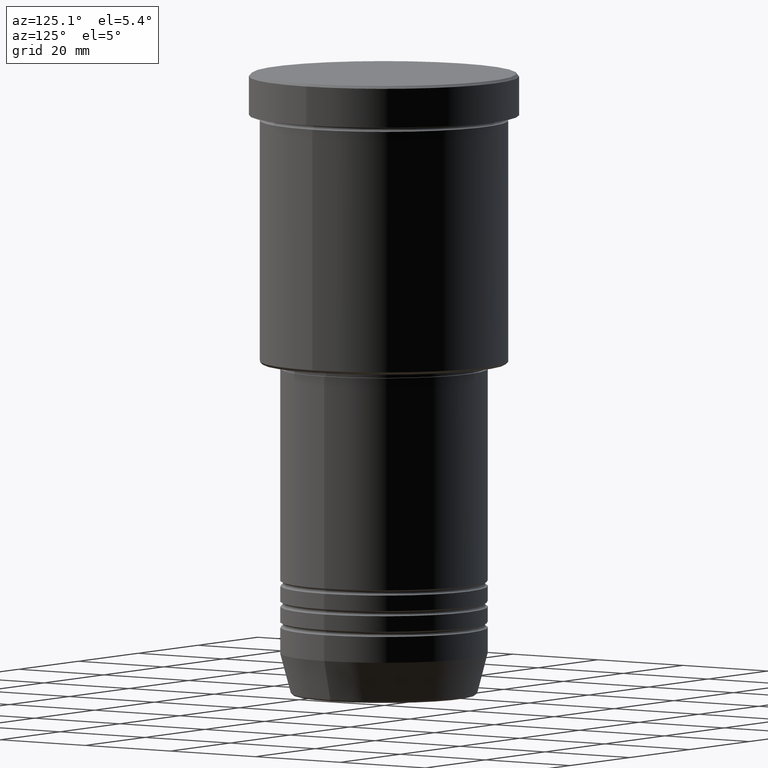
[diagram: clean part render]
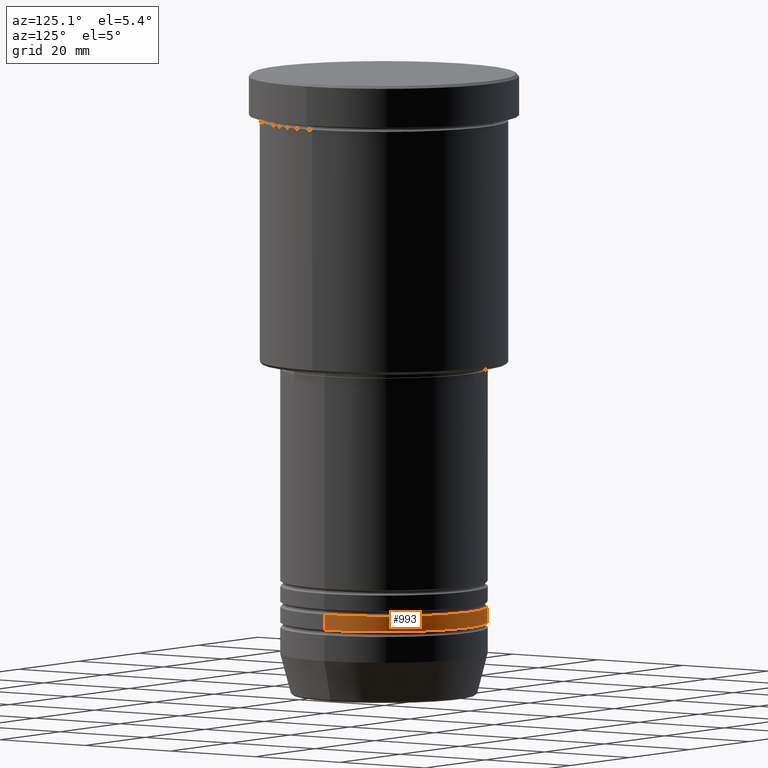
[diagram: same view with one face highlighted and labeled with its STEP entity id]
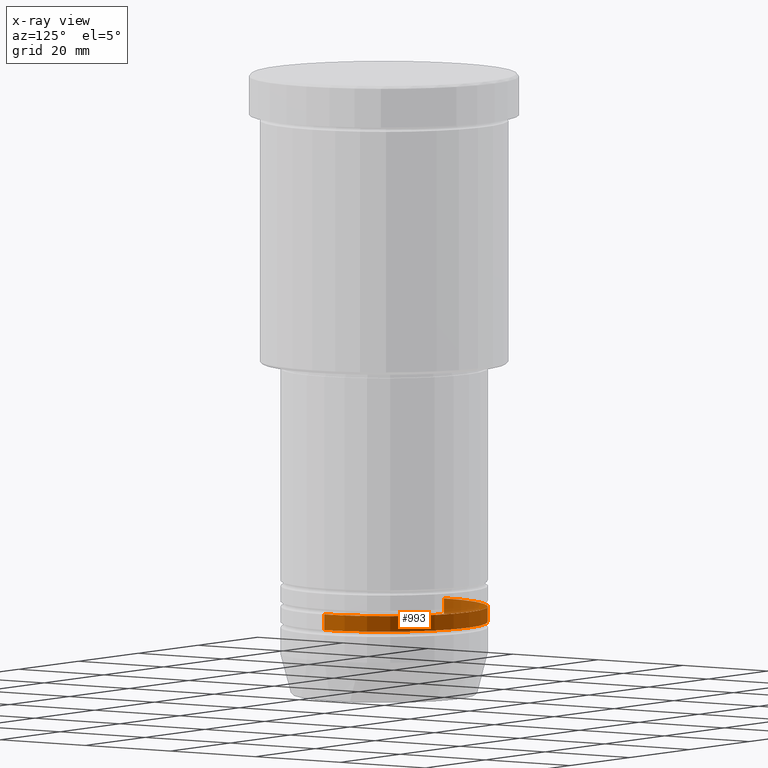
[diagram: x-ray of the same camera — body ghosted, the highlighted face saturated]
A machine part, auxiliary view. The second image highlights one B-rep face of the part: STEP entity #993.
The next image is the same camera in x-ray: the body ghosted, the highlighted face saturated — about 15% of this face is hidden behind the body in this view.
In plain terms, the highlighted cylindrical surface (partial cylindrical patch) has radius 20 mm, axis along (-0, -0, 1).
Its self-contained STEP definition (entity closure, byte-faithful):
#56 = EDGE_CURVE ( 'NONE', #1089, #865, #707, .T. ) ;
#137 = DIRECTION ( 'NONE',  ( 1.000000000000000000, 0.000000000000000000, 0.000000000000000000 ) ) ;
#153 = FACE_OUTER_BOUND ( 'NONE', #1081, .T. ) ;
#178 = CARTESIAN_POINT ( 'NONE',  ( -20.00000000000000000, 2.449293598294706513E-15, -102.9999999999999858 ) ) ;
#185 = AXIS2_PLACEMENT_3D ( 'NONE', #476, #921, #1117 ) ;
#201 = DIRECTION ( 'NONE',  ( -0.000000000000000000, -0.000000000000000000, 1.000000000000000000 ) ) ;
#231 = CARTESIAN_POINT ( 'NONE',  ( 20.00000000000000000, 0.000000000000000000, -102.9999999999999858 ) ) ;
#243 = VERTEX_POINT ( 'NONE', #387 ) ;
#255 = LINE ( 'NONE', #1079, #903 ) ;
#263 = ORIENTED_EDGE ( 'NONE', *, *, #341, .T. ) ;
#298 = CIRCLE ( 'NONE', #185, 20.00000000000000355 ) ;
#321 = EDGE_CURVE ( 'NONE', #944, #865, #460, .T. ) ;
#326 = CARTESIAN_POINT ( 'NONE',  ( 0.000000000000000000, 0.000000000000000000, -102.9999999999999858 ) ) ;
#341 = EDGE_CURVE ( 'NONE', #243, #944, #298, .T. ) ;
#387 = CARTESIAN_POINT ( 'NONE',  ( 20.00000000000000355, 0.000000000000000000, -105.9999999999999716 ) ) ;
#409 = EDGE_CURVE ( 'NONE', #243, #1089, #255, .T. ) ;
#460 = LINE ( 'NONE', #1019, #941 ) ;
#466 = ORIENTED_EDGE ( 'NONE', *, *, #56, .F. ) ;
#476 = CARTESIAN_POINT ( 'NONE',  ( 0.000000000000000000, 0.000000000000000000, -105.9999999999999716 ) ) ;
#477 = ORIENTED_EDGE ( 'NONE', *, *, #409, .F. ) ;
#535 = DIRECTION ( 'NONE',  ( -0.000000000000000000, -0.000000000000000000, 1.000000000000000000 ) ) ;
#654 = ORIENTED_EDGE ( 'NONE', *, *, #321, .T. ) ;
#707 = CIRCLE ( 'NONE', #956, 20.00000000000000000 ) ;
#809 = DIRECTION ( 'NONE',  ( 1.000000000000000000, 0.000000000000000000, 0.000000000000000000 ) ) ;
#843 = CARTESIAN_POINT ( 'NONE',  ( -20.00000000000000355, 2.449293598294706907E-15, -105.9999999999999716 ) ) ;
#865 = VERTEX_POINT ( 'NONE', #178 ) ;
#903 = VECTOR ( 'NONE', #535, 1000.000000000000000 ) ;
#921 = DIRECTION ( 'NONE',  ( -0.000000000000000000, -0.000000000000000000, 1.000000000000000000 ) ) ;
#941 = VECTOR ( 'NONE', #201, 1000.000000000000000 ) ;
#944 = VERTEX_POINT ( 'NONE', #843 ) ;
#956 = AXIS2_PLACEMENT_3D ( 'NONE', #326, #992, #809 ) ;
#962 = CARTESIAN_POINT ( 'NONE',  ( 0.000000000000000000, 0.000000000000000000, 0.000000000000000000 ) ) ;
#973 = CYLINDRICAL_SURFACE ( 'NONE', #1138, 20.00000000000000355 ) ;
#992 = DIRECTION ( 'NONE',  ( -0.000000000000000000, -0.000000000000000000, 1.000000000000000000 ) ) ;
#993 = ADVANCED_FACE ( 'NONE', ( #153 ), #973, .T. ) ;
#1019 = CARTESIAN_POINT ( 'NONE',  ( -20.00000000000000355, 2.449293598294706907E-15, 0.000000000000000000 ) ) ;
#1052 = DIRECTION ( 'NONE',  ( -0.000000000000000000, -0.000000000000000000, 1.000000000000000000 ) ) ;
#1079 = CARTESIAN_POINT ( 'NONE',  ( 20.00000000000000355, 0.000000000000000000, 0.000000000000000000 ) ) ;
#1081 = EDGE_LOOP ( 'NONE', ( #263, #654, #466, #477 ) ) ;
#1089 = VERTEX_POINT ( 'NONE', #231 ) ;
#1117 = DIRECTION ( 'NONE',  ( 1.000000000000000000, 0.000000000000000000, 0.000000000000000000 ) ) ;
#1138 = AXIS2_PLACEMENT_3D ( 'NONE', #962, #1052, #137 ) ;